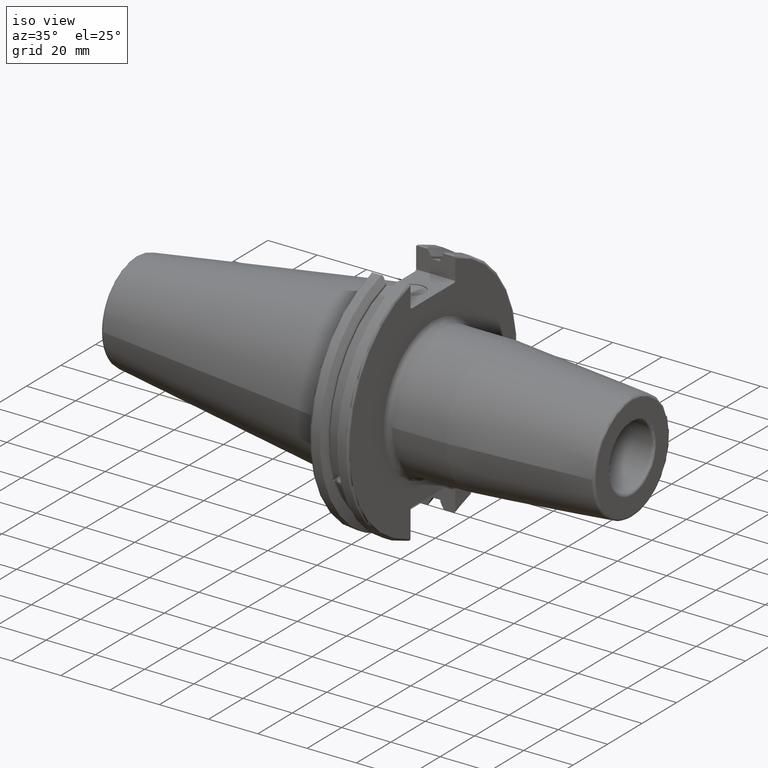
[diagram: clean part render]
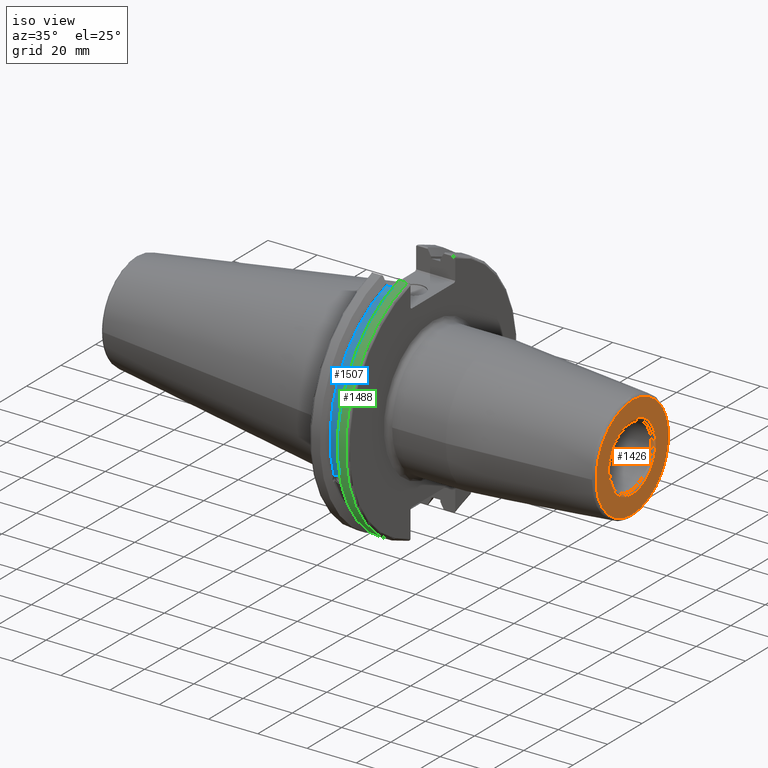
[diagram: same view with three faces highlighted in distinct colors, each labeled with its STEP entity id]
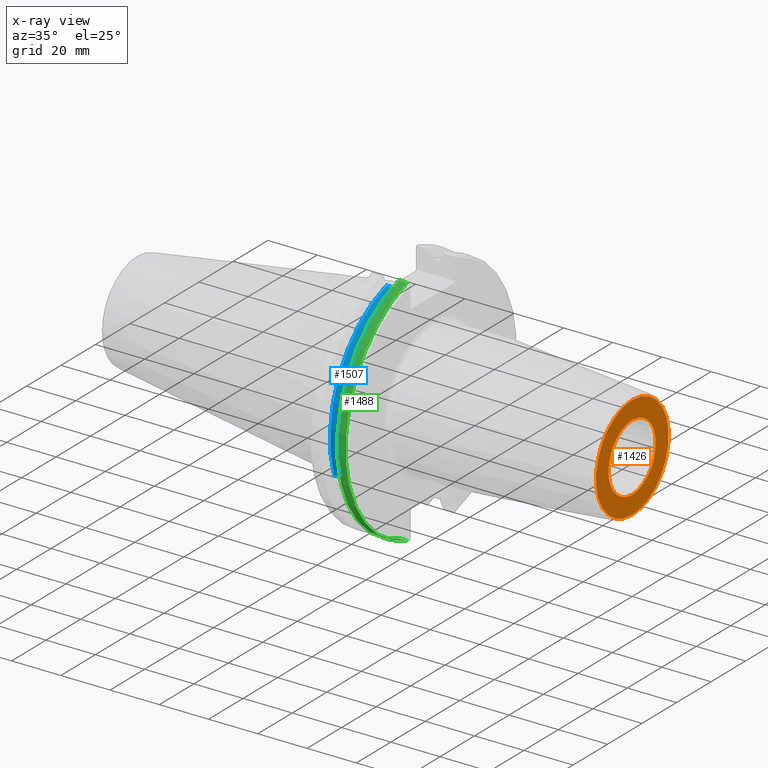
[diagram: x-ray of the same camera — body ghosted, the three highlighted faces saturated]
A machine part, iso view with three faces highlighted in distinct colors.
The next image is the same camera in x-ray (body ghosted, the three faces saturated) — at least one of them is partly hidden behind the body in this view.
Their STEP definitions:

[orange] entity #1426 — the highlighted planar face has unit normal (1, 0, 0).
#289=FACE_BOUND('',#432,.T.);
#309=PLANE('',#1537);
#347=FACE_OUTER_BOUND('',#431,.T.);
#431=EDGE_LOOP('',(#981));
#432=EDGE_LOOP('',(#982));
#537=CIRCLE('',#1536,13.7);
#538=CIRCLE('',#1538,21.0756095083418);
#610=VERTEX_POINT('',#2110);
#611=VERTEX_POINT('',#2114);
#759=EDGE_CURVE('',#610,#610,#537,.T.);
#760=EDGE_CURVE('',#611,#611,#538,.T.);
#981=ORIENTED_EDGE('',*,*,#760,.F.);
#982=ORIENTED_EDGE('',*,*,#759,.F.);
#1426=ADVANCED_FACE('',(#347,#289),#309,.T.);
#1536=AXIS2_PLACEMENT_3D('',#2112,#1702,#1703);
#1537=AXIS2_PLACEMENT_3D('',#2113,#1704,#1705);
#1538=AXIS2_PLACEMENT_3D('',#2115,#1706,#1707);
#1702=DIRECTION('center_axis',(1.,0.,0.));
#1703=DIRECTION('ref_axis',(0.,-1.,1.83697019872103E-16));
#1704=DIRECTION('center_axis',(1.,0.,0.));
#1705=DIRECTION('ref_axis',(0.,0.,-1.));
#1706=DIRECTION('center_axis',(-1.,0.,0.));
#1707=DIRECTION('ref_axis',(0.,-1.,1.83697019872103E-16));
#2110=CARTESIAN_POINT('',(100.,-1.67776611483187E-15,13.7));
#2112=CARTESIAN_POINT('Origin',(100.,0.,0.));
#2113=CARTESIAN_POINT('Origin',(100.,12.7,0.));
#2114=CARTESIAN_POINT('',(100.,-2.58101777244703E-15,21.0756095083418));
#2115=CARTESIAN_POINT('Origin',(100.,0.,0.));

[blue] entity #1507 — the highlighted cylindrical surface (partial cylindrical patch) has radius 45.6435 mm, axis along (1, 0, 0).
#42=B_SPLINE_CURVE_WITH_KNOTS('',3,(#2380,#2381,#2382,#2383,#2384,#2385,
#2386,#2387,#2388,#2389,#2390,#2391,#2392,#2393),.UNSPECIFIED.,.F.,.F.,
(4,2,2,2,2,2,4),(0.40154831257669,0.474697095495631,0.553813286063443,0.632929476631254,
0.712045667199066,0.791161857766877,0.864310640685818),.UNSPECIFIED.);
#144=LINE('',#2859,#234);
#234=VECTOR('',#1959,10.);
#288=CYLINDRICAL_SURFACE('',#1689,45.6435);
#428=FACE_OUTER_BOUND('',#532,.T.);
#532=EDGE_LOOP('',(#1408,#1409,#1410,#1411));
#606=CIRCLE('',#1688,45.6435);
#607=CIRCLE('',#1690,45.6435);
#650=VERTEX_POINT('',#2377);
#651=VERTEX_POINT('',#2379);
#730=VERTEX_POINT('',#2856);
#731=VERTEX_POINT('',#2858);
#811=EDGE_CURVE('',#651,#650,#42,.T.);
#916=EDGE_CURVE('',#731,#730,#144,.T.);
#974=EDGE_CURVE('',#730,#651,#606,.T.);
#975=EDGE_CURVE('',#731,#650,#607,.T.);
#1408=ORIENTED_EDGE('',*,*,#811,.T.);
#1409=ORIENTED_EDGE('',*,*,#975,.F.);
#1410=ORIENTED_EDGE('',*,*,#916,.T.);
#1411=ORIENTED_EDGE('',*,*,#974,.T.);
#1507=ADVANCED_FACE('',(#428),#288,.T.);
#1688=AXIS2_PLACEMENT_3D('',#3025,#2096,#2097);
#1689=AXIS2_PLACEMENT_3D('',#3026,#2098,#2099);
#1690=AXIS2_PLACEMENT_3D('',#3027,#2100,#2101);
#1959=DIRECTION('',(-1.,0.,0.));
#2096=DIRECTION('center_axis',(1.,0.,0.));
#2097=DIRECTION('ref_axis',(0.,0.,-1.));
#2098=DIRECTION('center_axis',(1.,0.,0.));
#2099=DIRECTION('ref_axis',(0.,-0.888619069115281,0.458645996390125));
#2100=DIRECTION('center_axis',(1.,0.,0.));
#2101=DIRECTION('ref_axis',(0.,0.,-1.));
#2377=CARTESIAN_POINT('',(13.0491,-43.1779814500336,-14.7983448449669));
#2379=CARTESIAN_POINT('',(9.2191,-43.1779814500336,-14.7983448449669));
#2380=CARTESIAN_POINT('Ctrl Pts',(9.2191,-43.1779814500335,-14.7983448449669));
#2381=CARTESIAN_POINT('Ctrl Pts',(9.32532177598176,-43.2545173750974,-14.5750315766731));
#2382=CARTESIAN_POINT('Ctrl Pts',(9.47680807557665,-43.3223492818373,-14.3712521044637));
#2383=CARTESIAN_POINT('Ctrl Pts',(9.83560503400179,-43.4340904392251,-14.0300988117073));
#2384=CARTESIAN_POINT('Ctrl Pts',(10.0717203280543,-43.4832903960863,-13.8760243976176));
#2385=CARTESIAN_POINT('Ctrl Pts',(10.5891059167872,-43.54802519266,-13.6715068146718));
#2386=CARTESIAN_POINT('Ctrl Pts',(10.870379364774,-43.5636826100883,-13.6211104428929));
#2387=CARTESIAN_POINT('Ctrl Pts',(11.397820635226,-43.5636826100883,-13.6211104428929));
#2388=CARTESIAN_POINT('Ctrl Pts',(11.6790940832128,-43.54802519266,-13.6715068146718));
#2389=CARTESIAN_POINT('Ctrl Pts',(12.1964796719457,-43.4832903960863,-13.8760243976176));
#2390=CARTESIAN_POINT('Ctrl Pts',(12.4325949659982,-43.4340904392251,-14.0300988117073));
#2391=CARTESIAN_POINT('Ctrl Pts',(12.7913919244233,-43.3223492818373,-14.3712521044637));
#2392=CARTESIAN_POINT('Ctrl Pts',(12.9428782240182,-43.2545173750974,-14.5750315766731));
#2393=CARTESIAN_POINT('Ctrl Pts',(13.0491,-43.1779814500335,-14.7983448449669));
#2856=CARTESIAN_POINT('',(9.2191,-12.95,43.7678716897452));
#2858=CARTESIAN_POINT('',(13.0491,-12.95,43.7678716897452));
#2859=CARTESIAN_POINT('',(11.1341,-12.95,43.7678716897452));
#3025=CARTESIAN_POINT('Origin',(9.2191,0.,0.));
#3026=CARTESIAN_POINT('Origin',(11.1341,0.,0.));
#3027=CARTESIAN_POINT('Origin',(13.0491,0.,0.));

[green] entity #1488 — the highlighted cylindrical surface (partial cylindrical patch) has radius 49.2125 mm, axis along (1, 0, 0).
#164=LINE('',#2979,#254);
#165=LINE('',#2981,#255);
#254=VECTOR('',#2031,10.);
#255=VECTOR('',#2034,10.);
#282=CYLINDRICAL_SURFACE('',#1660,49.2125);
#409=FACE_OUTER_BOUND('',#511,.T.);
#511=EDGE_LOOP('',(#1325,#1326,#1327,#1328));
#563=CIRCLE('',#1585,49.2125);
#587=CIRCLE('',#1632,49.2125);
#664=VERTEX_POINT('',#2463);
#665=VERTEX_POINT('',#2467);
#725=VERTEX_POINT('',#2822);
#726=VERTEX_POINT('',#2831);
#828=EDGE_CURVE('',#665,#664,#563,.T.);
#909=EDGE_CURVE('',#725,#726,#587,.T.);
#955=EDGE_CURVE('',#726,#664,#164,.T.);
#956=EDGE_CURVE('',#665,#725,#165,.T.);
#1325=ORIENTED_EDGE('',*,*,#909,.F.);
#1326=ORIENTED_EDGE('',*,*,#956,.F.);
#1327=ORIENTED_EDGE('',*,*,#828,.T.);
#1328=ORIENTED_EDGE('',*,*,#955,.F.);
#1488=ADVANCED_FACE('',(#409),#282,.T.);
#1585=AXIS2_PLACEMENT_3D('',#2468,#1827,#1828);
#1632=AXIS2_PLACEMENT_3D('',#2832,#1952,#1953);
#1660=AXIS2_PLACEMENT_3D('',#2980,#2032,#2033);
#1827=DIRECTION('center_axis',(1.,0.,0.));
#1828=DIRECTION('ref_axis',(0.,0.,-1.));
#1952=DIRECTION('center_axis',(1.,0.,0.));
#1953=DIRECTION('ref_axis',(0.,-1.,1.60812264967664E-16));
#2031=DIRECTION('',(-1.,0.,0.));
#2032=DIRECTION('center_axis',(1.,0.,0.));
#2033=DIRECTION('ref_axis',(0.,-1.,1.22464679914735E-16));
#2034=DIRECTION('',(1.,0.,0.));
#2463=CARTESIAN_POINT('',(14.6602090340487,-13.4317035994433,-47.3440544806494));
#2467=CARTESIAN_POINT('',(14.6602090340487,-13.4317035994433,47.3440544806494));
#2468=CARTESIAN_POINT('Origin',(14.6602090340487,0.,0.));
#2822=CARTESIAN_POINT('',(18.05,-13.4317035994433,47.3440544806494));
#2831=CARTESIAN_POINT('',(18.05,-13.4317035994433,-47.3440544806494));
#2832=CARTESIAN_POINT('Origin',(18.05,0.,0.));
#2979=CARTESIAN_POINT('',(16.8551045170244,-13.4317035994433,-47.3440544806494));
#2980=CARTESIAN_POINT('Origin',(16.8551045170244,0.,0.));
#2981=CARTESIAN_POINT('',(16.8551045170244,-13.4317035994433,47.3440544806494));